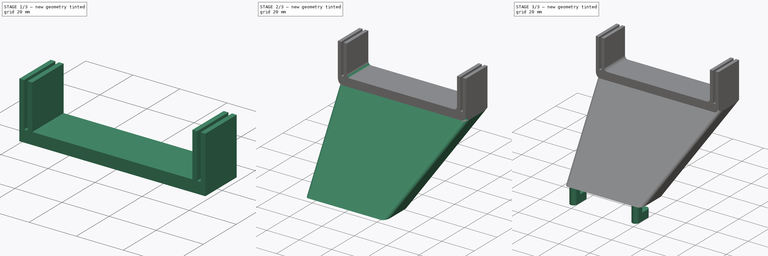
[diagram: build sequence overview — one tinted view per stage of 3, left to right]
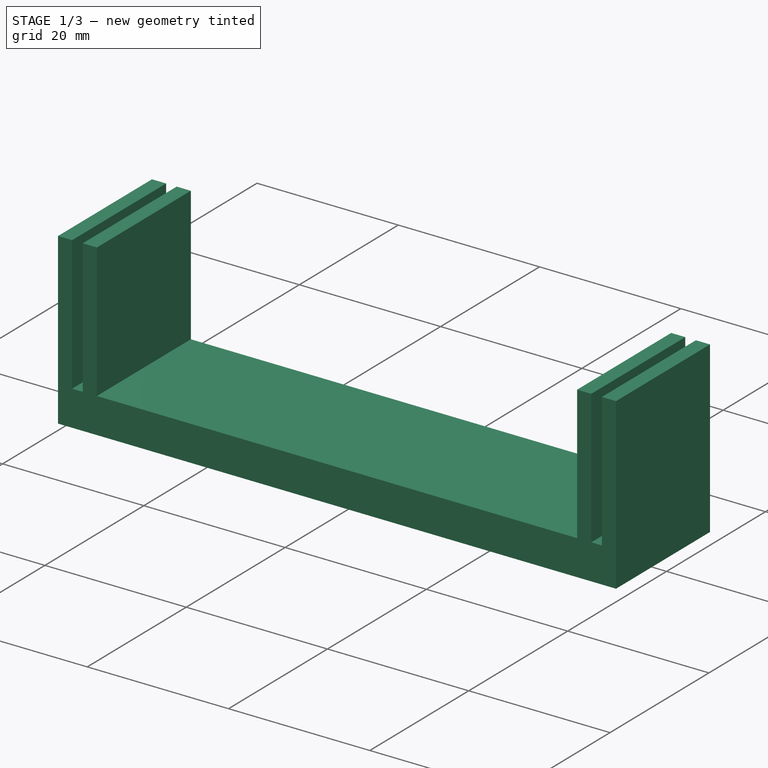
[diagram: stage 1 of 3 — iso view after this stage's code; geometry added in this stage tinted green]
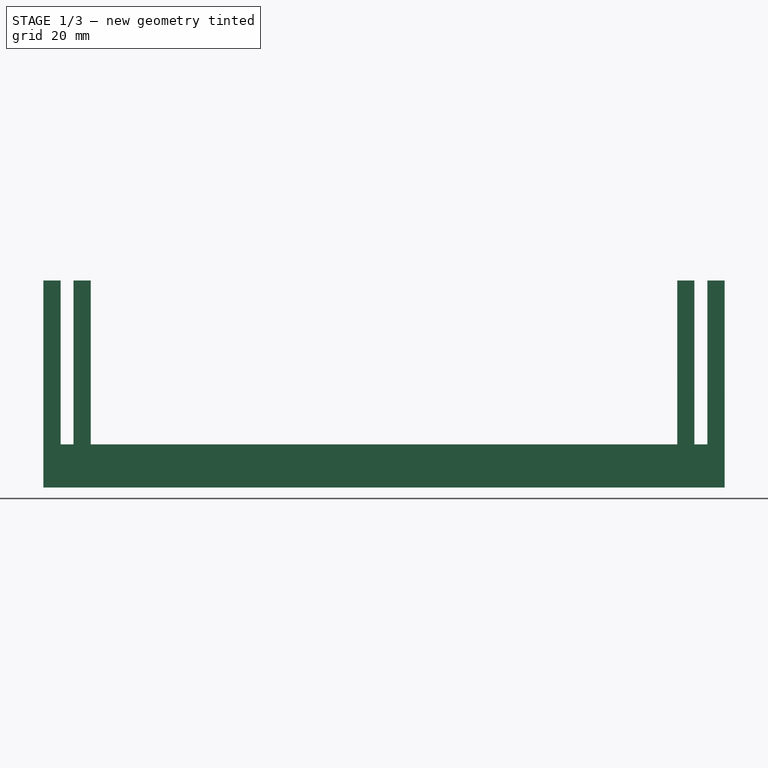
[diagram: stage 1 of 3 — front view after this stage's code; geometry added in this stage tinted green]
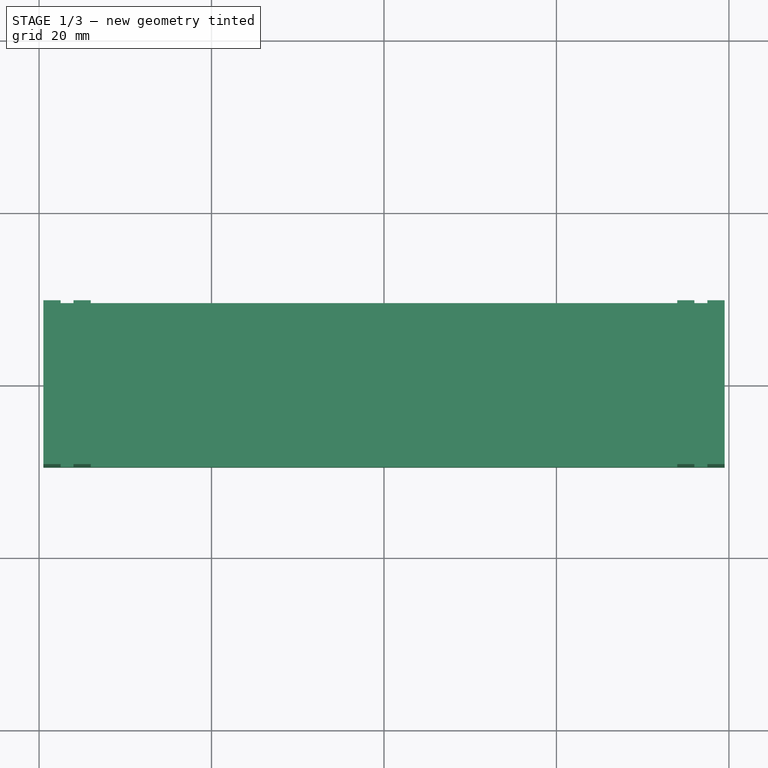
[diagram: stage 1 of 3 — top view after this stage's code; geometry added in this stage tinted green]
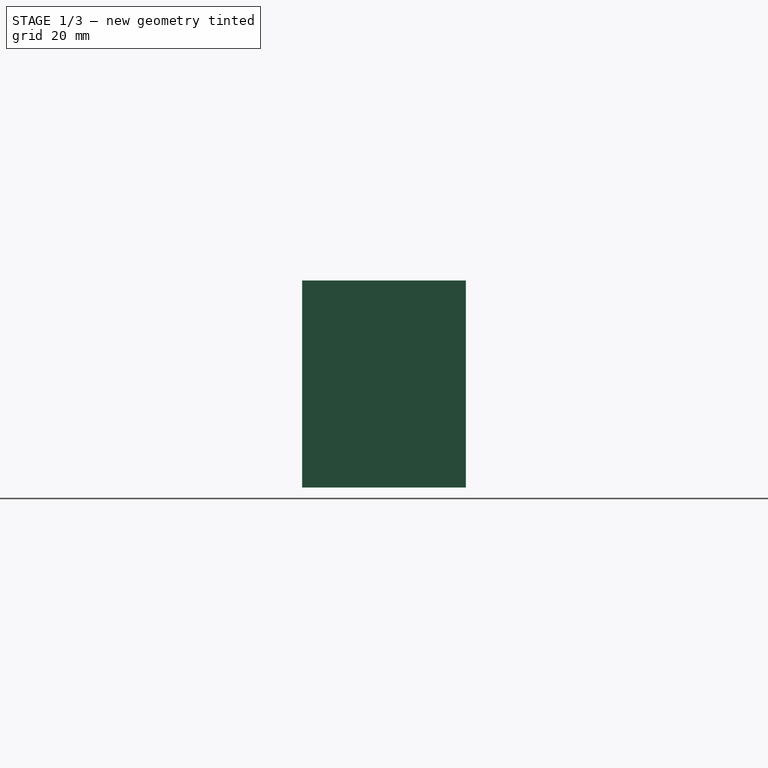
[diagram: stage 1 of 3 — right view after this stage's code; geometry added in this stage tinted green]
FCSTD DOCUMENT  (FreeCAD 1.0R39285 (Git))
Label: 01_Light_Hanger_v2
License: All rights reserved
LicenseURL: https://en.wikipedia.org/wiki/All_rights_reserved
objects: Sketcher::SketchObject×6, PartDesign::Pad×4, PartDesign::Fillet×2, PartDesign::AdditiveLoft×1, PartDesign::Body×1
note: 34 computed .brp shape members not serialized (recipe doc carries the construction recipe); baked Part::Feature solids carry a one-line shape summary decoded from their .brp

FEATURE [Sketcher::SketchObject] Sketch
  ArcFitTolerance = 1e-06
  AttachmentSupport = -> [XY_Plane]
  FullyConstrained = true
  MakeInternals = false
  MapMode = 5
  sketch-geometry (4):
    g0: LineSegment StartX=-39.5 StartY=9.5 StartZ=0 EndX=-39.5 EndY=-9.5 EndZ=0
    g1: LineSegment StartX=-39.5 StartY=-9.5 StartZ=0 EndX=39.5 EndY=-9.5 EndZ=0
    g2: LineSegment StartX=39.5 StartY=-9.5 StartZ=0 EndX=39.5 EndY=9.5 EndZ=0
    g3: LineSegment StartX=39.5 StartY=9.5 StartZ=0 EndX=-39.5 EndY=9.5 EndZ=0
  constraints (11):
    c: Coincident(g0,g1)
    c: Coincident(g1,g2)
    c: Coincident(g2,g3)
    c: Coincident(g3,g0)
    c: Vertical(g0)
    c: Vertical(g2)
    c: Horizontal(g1)
    c: Horizontal(g3)
    c: Distance(g0,g2) = 79
    c: Distance(g1,g3) = 19
    c: Symmetric(g0,g1,g-1)
FEATURE [PartDesign::Pad] Pad
  Direction = (0,0,1)
  Length = 5
  Length2 = 10
  Profile = -> Sketch
  ReferenceAxis = -> Sketch [N_Axis]
  Refine = true
  Suppressed = false
  Type = 0
FEATURE [Sketcher::SketchObject] Sketch001
  ArcFitTolerance = 1e-06
  AttachmentSupport = -> [Pad]
  ExternalGeometry = -> [Pad]
  FullyConstrained = true
  MakeInternals = false
  MapMode = 5
  Placement = pos=(0,0,5) rot=(0,0,1;0rad)
  sketch-geometry (16):
    g0: LineSegment StartX=-39.5 StartY=9.5 StartZ=0 EndX=-39.5 EndY=-9.5 EndZ=0
    g1: LineSegment StartX=-39.5 StartY=-9.5 StartZ=0 EndX=-37.5 EndY=-9.5 EndZ=0
    g2: LineSegment StartX=-37.5 StartY=-9.5 StartZ=0 EndX=-37.5 EndY=9.5 EndZ=0
    g3: LineSegment StartX=-37.5 StartY=9.5 StartZ=0 EndX=-39.5 EndY=9.5 EndZ=0
    g4: LineSegment StartX=-36 StartY=9.5 StartZ=0 EndX=-36 EndY=-9.5 EndZ=0
    g5: LineSegment StartX=-36 StartY=-9.5 StartZ=0 EndX=-34 EndY=-9.5 EndZ=0
    g6: LineSegment StartX=-34 StartY=-9.5 StartZ=0 EndX=-34 EndY=9.5 EndZ=0
    g7: LineSegment StartX=-34 StartY=9.5 StartZ=0 EndX=-36 EndY=9.5 EndZ=0
    g8: LineSegment StartX=34 StartY=9.5 StartZ=0 EndX=34 EndY=-9.5 EndZ=0
    g9: LineSegment StartX=34 StartY=-9.5 StartZ=0 EndX=36 EndY=-9.5 EndZ=0
    g10: LineSegment StartX=36 StartY=-9.5 StartZ=0 EndX=36 EndY=9.5 EndZ=0
    g11: LineSegment StartX=36 StartY=9.5 StartZ=0 EndX=34 EndY=9.5 EndZ=0
    g12: LineSegment StartX=37.5 StartY=9.5 StartZ=0 EndX=37.5 EndY=-9.5 EndZ=0
    g13: LineSegment StartX=37.5 StartY=-9.5 StartZ=0 EndX=39.5 EndY=-9.5 EndZ=0
    g14: LineSegment StartX=39.5 StartY=-9.5 StartZ=0 EndX=39.5 EndY=9.5 EndZ=0
    g15: LineSegment StartX=39.5 StartY=9.5 StartZ=0 EndX=37.5 EndY=9.5 EndZ=0
  constraints (46):
    c: Coincident(g0,g1)
    c: Coincident(g1,g2)
    c: Coincident(g2,g3)
    c: Coincident(g3,g0)
    c: Vertical(g0)
    c: Vertical(g2)
    c: Horizontal(g1)
    c: Horizontal(g3)
    c: Distance(g0,g2) = 2
    c: Coincident(g4,g5)
    c: Coincident(g5,g6)
    c: Coincident(g6,g7)
    c: Coincident(g7,g4)
    c: Vertical(g4)
    c: Vertical(g6)
    c: Horizontal(g5)
    c: Horizontal(g7)
    c: Coincident(g8,g9)
    c: Coincident(g9,g10)
    c: Coincident(g10,g11)
    c: Coincident(g11,g8)
    c: Vertical(g8)
    c: Vertical(g10)
    c: Horizontal(g9)
    c: Horizontal(g11)
    c: Coincident(g12,g13)
    c: Coincident(g13,g14)
    c: Coincident(g14,g15)
    c: Coincident(g15,g12)
    c: Vertical(g12)
    c: Vertical(g14)
    c: Horizontal(g13)
    c: Horizontal(g15)
    c: Equal(g0,g4)
    c: Equal(g4,g8)
    c: Equal(g8,g12)
    c: Equal(g3,g7)
    c: Equal(g7,g11)
    c: Equal(g11,g15)
    c: Equal(g0,g-3)
    c: Coincident(g0,g-3)
    c: Horizontal(g2,g4)
    c: DistanceX(g2,g4) = 1.5
    c: Horizontal(g12,g10)
    c: DistanceX(g10,g12) = 1.5
    c: Coincident(g14,g-4)
FEATURE [PartDesign::Pad] Pad001
  BaseFeature = -> Pad
  Direction = (0,0,1)
  Length = 19
  Length2 = 10
  Profile = -> Sketch001
  ReferenceAxis = -> Sketch001 [N_Axis]
  Refine = true
  Suppressed = false
  Type = 0
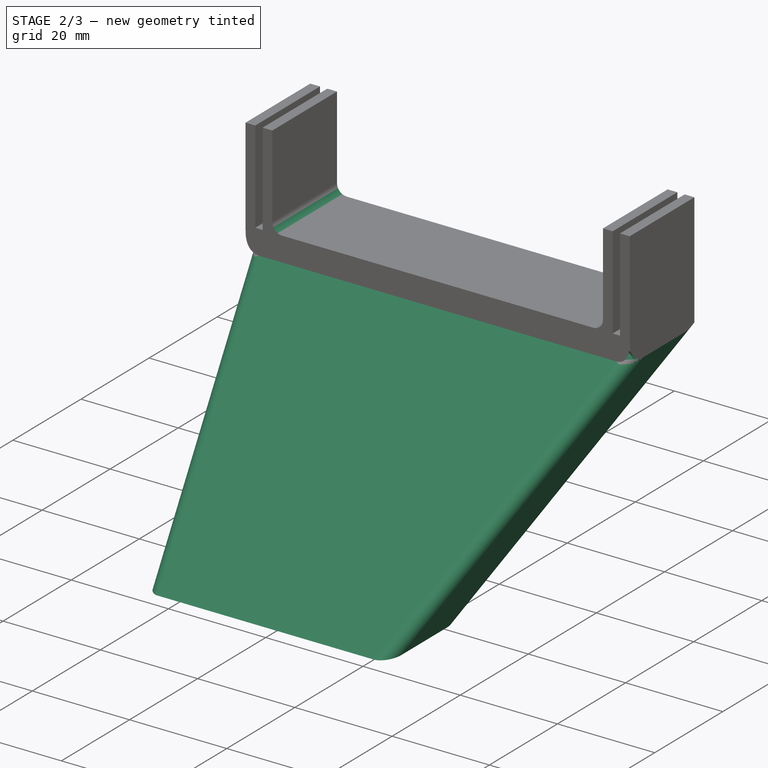
[diagram: stage 2 of 3 — iso view after this stage's code; geometry added in this stage tinted green]
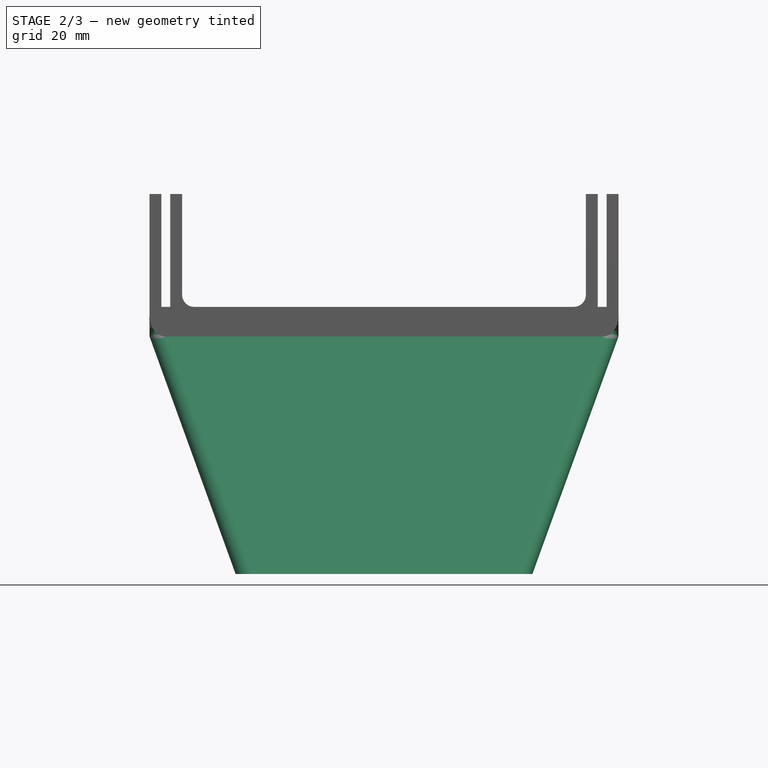
[diagram: stage 2 of 3 — front view after this stage's code; geometry added in this stage tinted green]
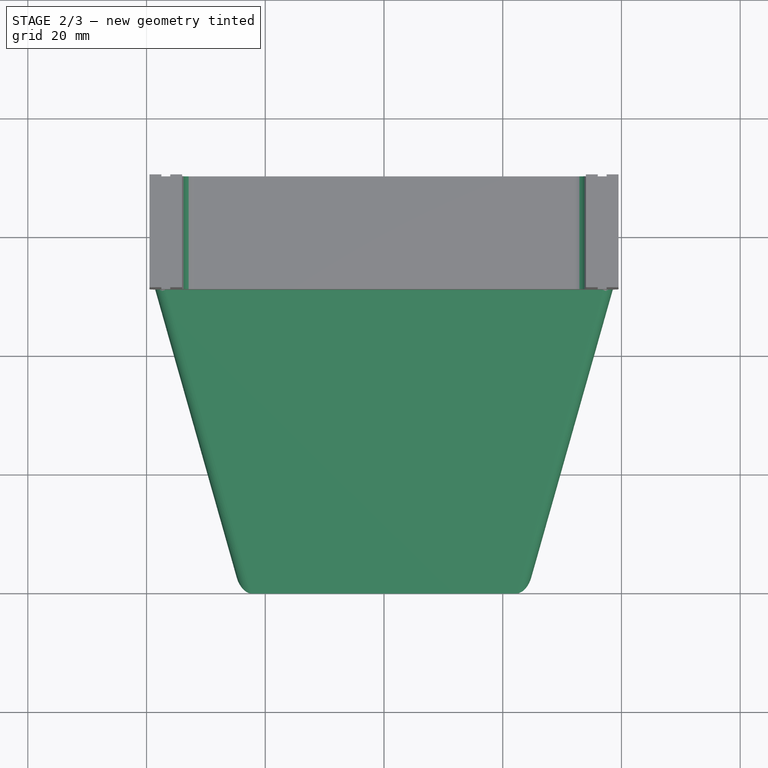
[diagram: stage 2 of 3 — top view after this stage's code; geometry added in this stage tinted green]
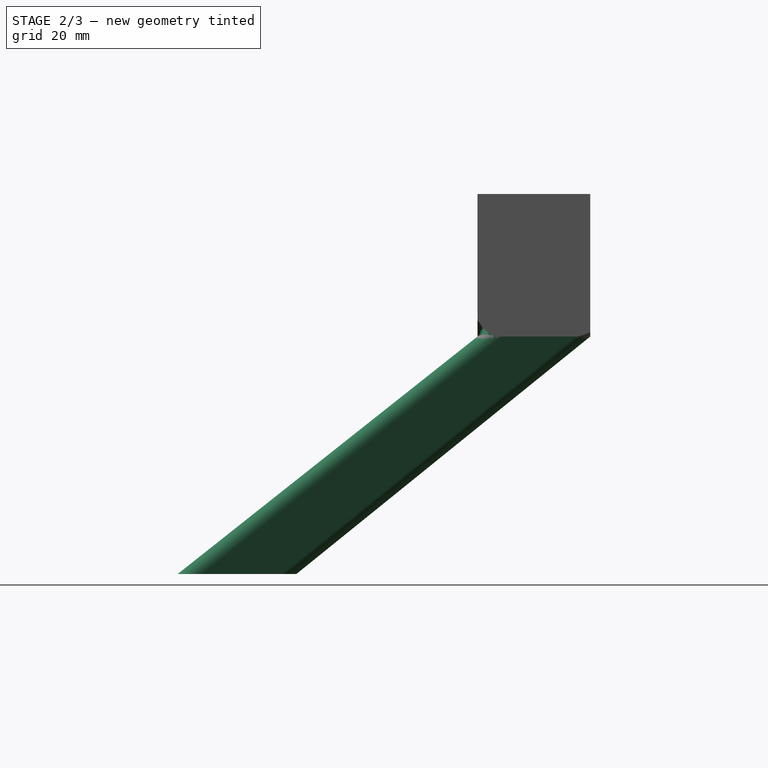
[diagram: stage 2 of 3 — right view after this stage's code; geometry added in this stage tinted green]
FEATURE [PartDesign::Fillet] Fillet001
  Base = -> Pad001 [Edge19,Edge21]
  BaseFeature = -> Pad001
  Radius = 2
  Refine = true
  SupportTransform = false
  Suppressed = false
  UseAllEdges = false
FEATURE [Sketcher::SketchObject] Sketch003
  ArcFitTolerance = 1e-06
  AttachmentOffset = pos=(0,0,-40) rot=(0,0,1;0rad)
  AttachmentSupport = -> [XY_Plane]
  FullyConstrained = true
  MakeInternals = false
  MapMode = 5
  Placement = pos=(0,0,-40) rot=(0,0,1;0rad)
  sketch-geometry (4):
    g0: LineSegment StartX=-25 StartY=-40 StartZ=0 EndX=-25 EndY=-60 EndZ=0
    g1: LineSegment StartX=-25 StartY=-60 StartZ=0 EndX=25 EndY=-60 EndZ=0
    g2: LineSegment StartX=25 StartY=-60 StartZ=0 EndX=25 EndY=-40 EndZ=0
    g3: LineSegment StartX=25 StartY=-40 StartZ=0 EndX=-25 EndY=-40 EndZ=0
  constraints (12):
    c: Coincident(g0,g1)
    c: Coincident(g1,g2)
    c: Coincident(g2,g3)
    c: Coincident(g3,g0)
    c: Vertical(g0)
    c: Vertical(g2)
    c: Horizontal(g1)
    c: Horizontal(g3)
    c: Distance(g0,g2) = 50
    c: Distance(g1,g3) = 20
    c: DistanceY(g0,g-1) = 40
    c: DistanceX(g0,g-1) = 25
FEATURE [Sketcher::SketchObject] Sketch005
  ArcFitTolerance = 1e-06
  AttachmentSupport = -> [Fillet001]
  ExternalGeometry = -> [Fillet001]
  FullyConstrained = true
  MakeInternals = false
  MapMode = 5
  Placement = pos=(0,0,0) rot=(1,0,0;3.14159rad)
  sketch-geometry (4):
    g0: LineSegment StartX=-39.5 StartY=9.5 StartZ=0 EndX=-39.5 EndY=-9.5 EndZ=0
    g1: LineSegment StartX=-39.5 StartY=-9.5 StartZ=0 EndX=39.5 EndY=-9.5 EndZ=0
    g2: LineSegment StartX=39.5 StartY=-9.5 StartZ=0 EndX=39.5 EndY=9.5 EndZ=0
    g3: LineSegment StartX=39.5 StartY=9.5 StartZ=0 EndX=-39.5 EndY=9.5 EndZ=0
  constraints (11):
    c: Coincident(g0,g1)
    c: Coincident(g1,g2)
    c: Coincident(g2,g3)
    c: Coincident(g3,g0)
    c: Vertical(g0)
    c: Vertical(g2)
    c: Horizontal(g1)
    c: Horizontal(g3)
    c: Equal(g3,g-4)
    c: Equal(g0,g-3)
    c: Coincident(g0,g-4)
FEATURE [PartDesign::AdditiveLoft] AdditiveLoft
  BaseFeature = -> Fillet001
  Closed = false
  Profile = -> Sketch005
  Refine = true
  Ruled = false
  Sections = -> [Sketch003]
  Suppressed = false
FEATURE [PartDesign::Fillet] Fillet
  Base = -> AdditiveLoft [Edge58,Edge54,Edge52,Edge60]
  BaseFeature = -> AdditiveLoft
  Radius = 2
  Refine = true
  SupportTransform = false
  Suppressed = false
  UseAllEdges = false
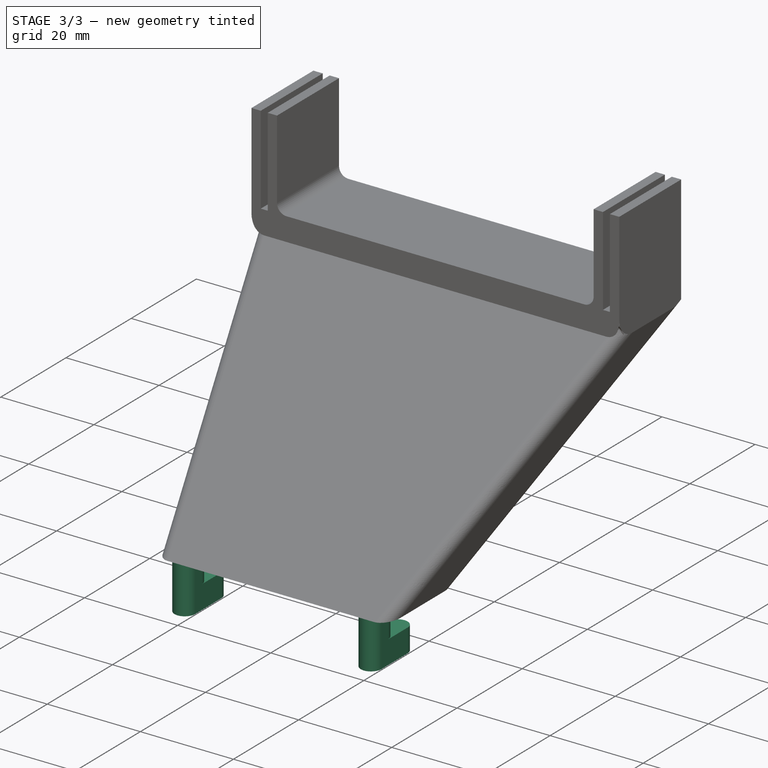
[diagram: stage 3 of 3 — iso view after this stage's code; geometry added in this stage tinted green]
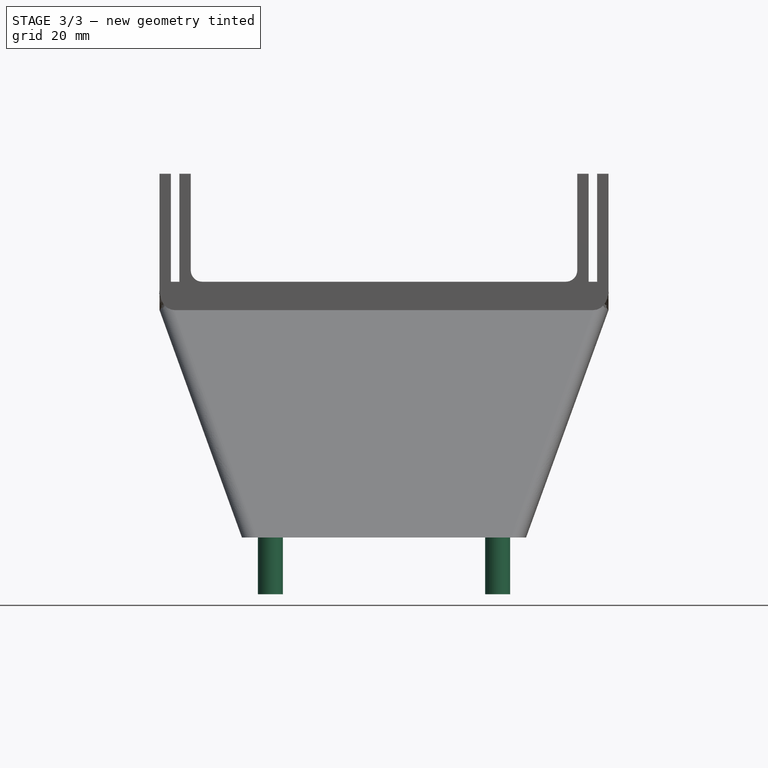
[diagram: stage 3 of 3 — front view after this stage's code; geometry added in this stage tinted green]
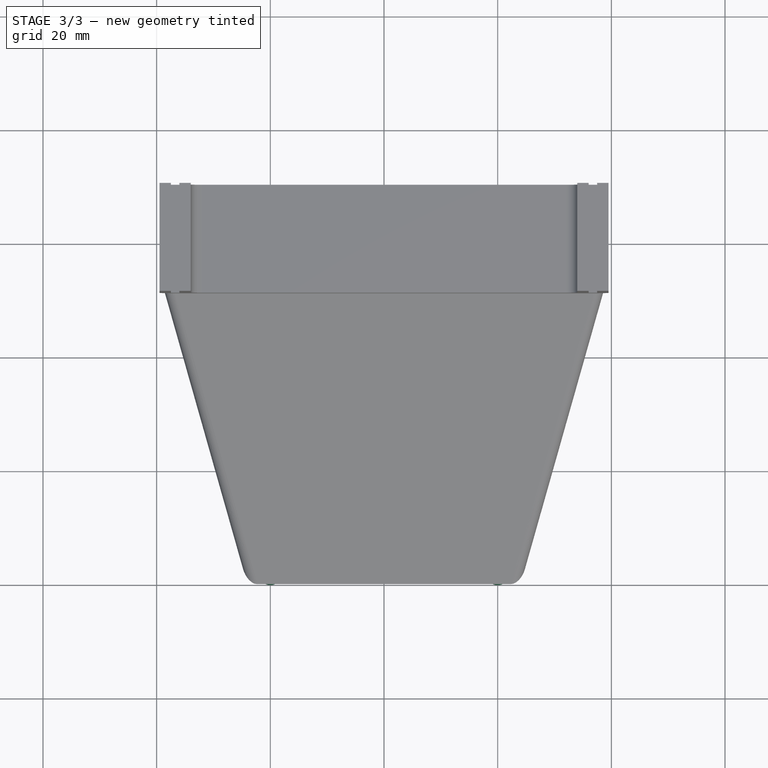
[diagram: stage 3 of 3 — top view after this stage's code; geometry added in this stage tinted green]
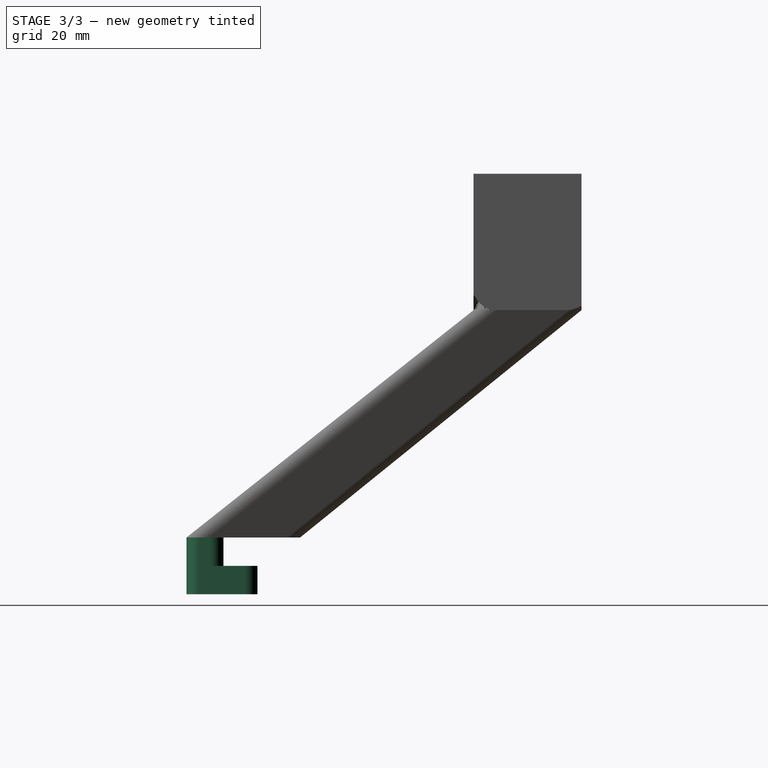
[diagram: stage 3 of 3 — right view after this stage's code; geometry added in this stage tinted green]
FEATURE [Sketcher::SketchObject] Sketch006
  ArcFitTolerance = 1e-06
  AttachmentSupport = -> [Fillet]
  ExternalGeometry = -> [Fillet]
  FullyConstrained = true
  MakeInternals = false
  MapMode = 5
  Placement = pos=(0,0,-40) rot=(1,0,0;3.14159rad)
  sketch-geometry (10):
    g0: ArcOfCircle CenterX=-20 CenterY=57.8 CenterZ=0 NormalX=0 NormalY=0 NormalZ=1 AngleXU=0 Radius=2.2 StartAngle=0 EndAngle=3.14159
    g1: ArcOfCircle CenterX=-20 CenterY=55.7 CenterZ=0 NormalX=0 NormalY=0 NormalZ=1 AngleXU=0 Radius=2.2 StartAngle=3.14159 EndAngle=6.28319
    g2: LineSegment StartX=-17.8 StartY=57.8 StartZ=0 EndX=-17.8 EndY=55.7 EndZ=0
    g3: LineSegment StartX=-22.2 StartY=57.8 StartZ=0 EndX=-22.2 EndY=55.7 EndZ=0
    g4: ArcOfCircle CenterX=20 CenterY=57.8 CenterZ=0 NormalX=0 NormalY=0 NormalZ=1 AngleXU=0 Radius=2.2 StartAngle=-9e-16 EndAngle=3.14159
    g5: ArcOfCircle CenterX=20 CenterY=55.7 CenterZ=0 NormalX=0 NormalY=0 NormalZ=1 AngleXU=0 Radius=2.2 StartAngle=3.14159 EndAngle=6.28319
    g6: LineSegment StartX=22.2 StartY=57.8 StartZ=0 EndX=22.2 EndY=55.7 EndZ=0
    g7: LineSegment StartX=17.8 StartY=57.8 StartZ=0 EndX=17.8 EndY=55.7 EndZ=0
    g8: LineSegment [constr] StartX=-20 StartY=57.8 StartZ=0 EndX=0 EndY=0 EndZ=0
    g9: LineSegment [constr] StartX=20 StartY=57.8 StartZ=0 EndX=0 EndY=0 EndZ=0
  constraints (24):
    c: Tangent(g0,g2) = 1.5708
    c: Tangent(g0,g3) = -1.5708
    c: Tangent(g1,g2) = 1.5708
    c: Tangent(g1,g3) = -1.5708
    c: Equal(g0,g1)
    c: Vertical(g3)
    c: Distance(g0,g1) = 2.1
    c: Radius(g0) = 2.2
    c: Tangent(g4,g6) = 1.5708
    c: Tangent(g4,g7) = -1.5708
    c: Tangent(g5,g6) = 1.5708
    c: Tangent(g5,g7) = -1.5708
    c: Equal(g4,g5)
    c: Vertical(g7)
    c: Distance(g4,g5) = 2.1
    c: Radius(g4) = 2.2
    c: Horizontal(g0,g4)
    c: DistanceX(g0,g4) = 40
    c: Coincident(g8,g0)
    c: Coincident(g8,g-1)
    c: Coincident(g9,g4)
    c: Coincident(g9,g8)
    c: Equal(g8,g9)
    c: DistanceY(g0,g-4) = 2.2
FEATURE [PartDesign::Pad] Pad002
  BaseFeature = -> Fillet
  Direction = (0,0,-1)
  Length = 5
  Length2 = 10
  Profile = -> Sketch006
  ReferenceAxis = -> Sketch006 [N_Axis]
  Refine = true
  Suppressed = false
  Type = 0
FEATURE [Sketcher::SketchObject] Sketch007
  ArcFitTolerance = 1e-06
  AttachmentSupport = -> [Pad002]
  ExternalGeometry = -> [Pad002]
  FullyConstrained = true
  MakeInternals = false
  MapMode = 5
  Placement = pos=(0,0,-45) rot=(1,0,0;3.14159rad)
  sketch-geometry (8):
    g0: ArcOfCircle CenterX=-20 CenterY=57.8 CenterZ=0 NormalX=0 NormalY=0 NormalZ=1 AngleXU=0 Radius=2.2 StartAngle=0 EndAngle=3.14159
    g1: ArcOfCircle CenterX=-20 CenterY=49.7 CenterZ=0 NormalX=0 NormalY=0 NormalZ=1 AngleXU=0 Radius=2.2 StartAngle=3.14159 EndAngle=6.28319
    g2: LineSegment StartX=-17.8 StartY=57.8 StartZ=0 EndX=-17.8 EndY=49.7 EndZ=0
    g3: LineSegment StartX=-22.2 StartY=57.8 StartZ=0 EndX=-22.2 EndY=49.7 EndZ=0
    g4: ArcOfCircle CenterX=20 CenterY=57.8 CenterZ=0 NormalX=0 NormalY=0 NormalZ=1 AngleXU=0 Radius=2.2 StartAngle=1.4e-15 EndAngle=3.14159
    g5: ArcOfCircle CenterX=20 CenterY=49.7 CenterZ=0 NormalX=0 NormalY=0 NormalZ=1 AngleXU=0 Radius=2.2 StartAngle=3.14159 EndAngle=6.28319
    g6: LineSegment StartX=22.2 StartY=57.8 StartZ=0 EndX=22.2 EndY=49.7 EndZ=0
    g7: LineSegment StartX=17.8 StartY=57.8 StartZ=0 EndX=17.8 EndY=49.7 EndZ=0
  constraints (19):
    c: Tangent(g0,g2) = 1.5708
    c: Tangent(g0,g3) = -1.5708
    c: Tangent(g1,g2) = 1.5708
    c: Tangent(g1,g3) = -1.5708
    c: Equal(g0,g1)
    c: Vertical(g3)
    c: Distance(g0,g1) = 8.1
    c: Radius(g0) = 2.2
    c: Tangent(g4,g6) = 1.5708
    c: Tangent(g4,g7) = -1.5708
    c: Tangent(g5,g6) = 1.5708
    c: Tangent(g5,g7) = -1.5708
    c: Equal(g4,g5)
    c: Vertical(g7)
    c: Distance(g4,g5) = 8.1
    c: Radius(g4) = 2.2
    c: Horizontal(g0,g4)
    c: DistanceX(g0,g4) = 40
    c: Coincident(g-3,g0)
FEATURE [PartDesign::Pad] Pad003
  BaseFeature = -> Pad002
  Direction = (0,0,-1)
  Length = 5
  Length2 = 10
  Profile = -> Sketch007
  ReferenceAxis = -> Sketch007 [N_Axis]
  Refine = true
  Suppressed = false
  Type = 0
FEATURE [PartDesign::Body] Body
  AllowCompound = false
  Group = -> [Sketch,Pad,Sketch001,Pad001,Fillet001,Sketch003,Sketch005,AdditiveLoft,Fillet,Sketch006,Pad002,Sketch007,Pad003]
  Origin = -> Origin
  Tip = -> Pad003
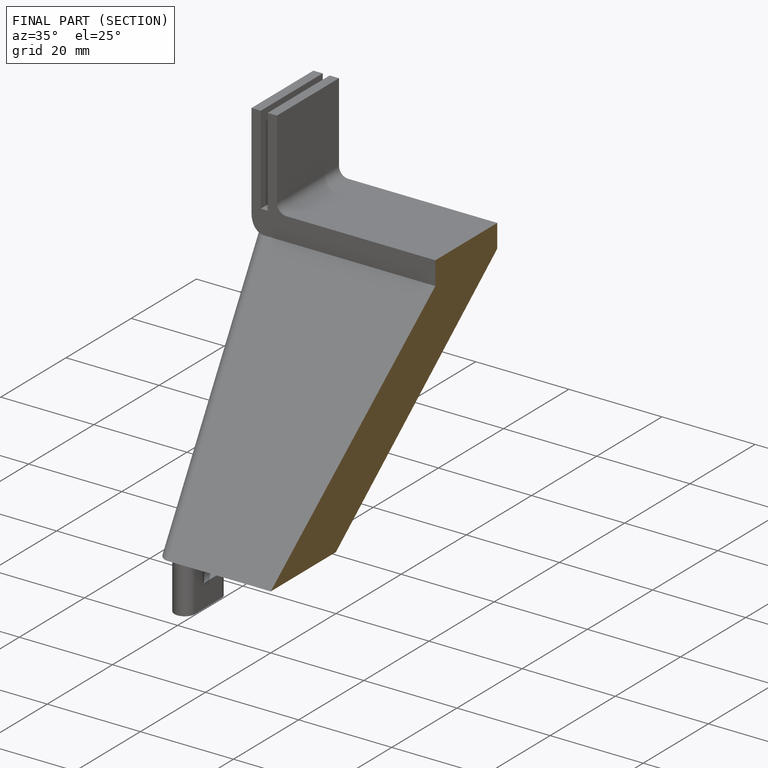
[diagram: finished part — half-section view (interior)]
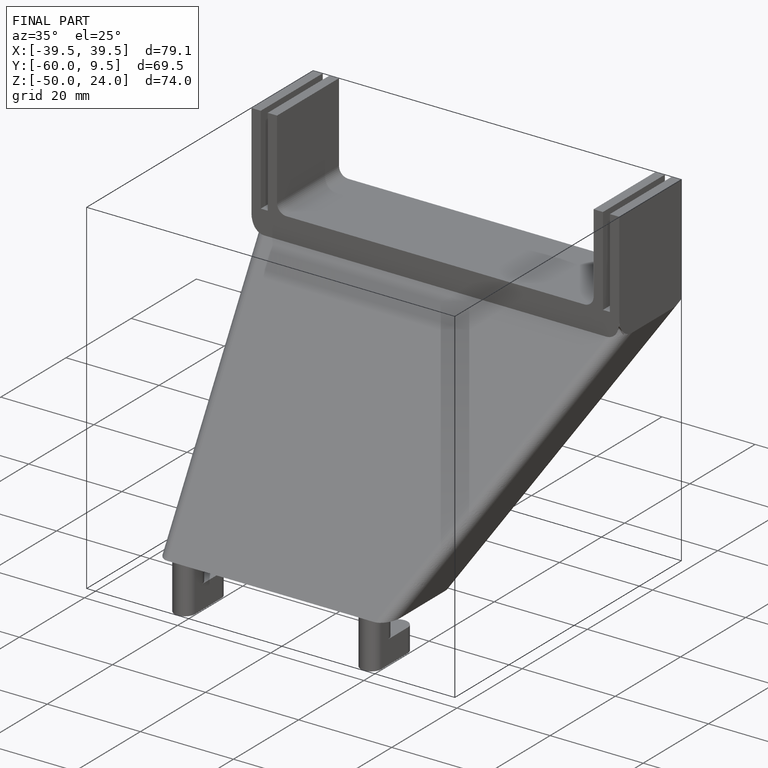
[diagram: finished part — iso view with bounding-box wireframe]
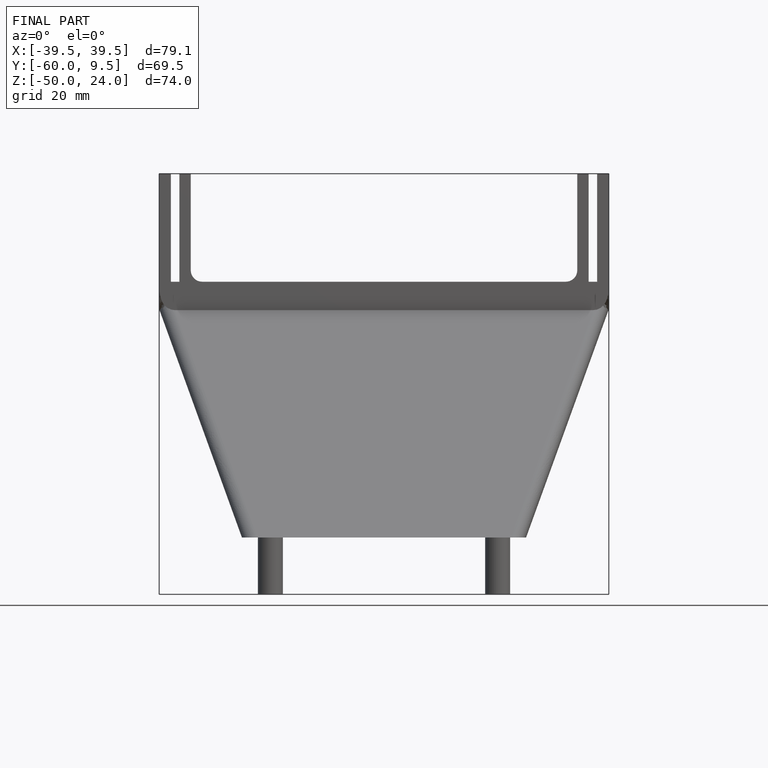
[diagram: finished part — front view with bounding-box wireframe]
